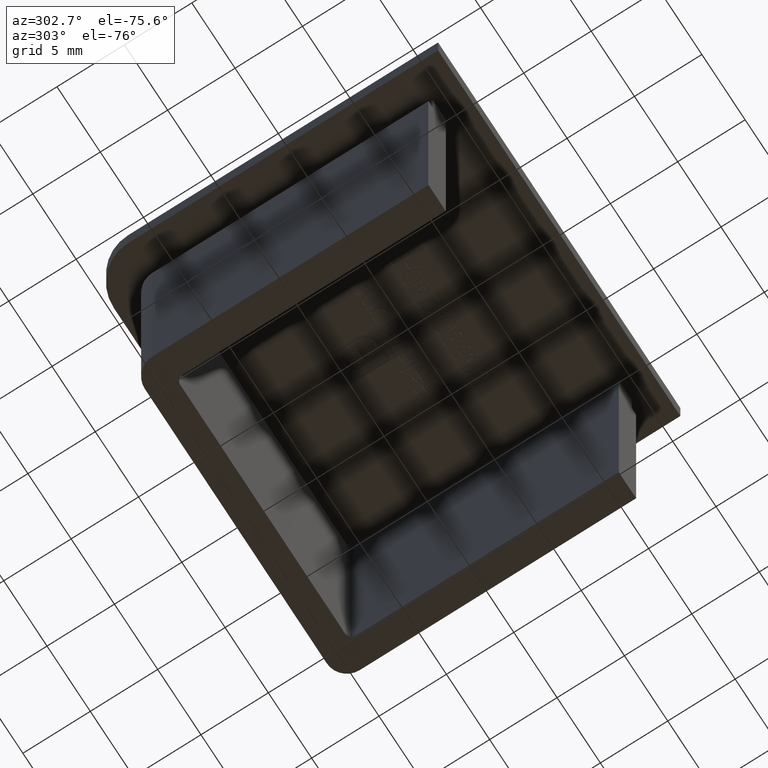
[diagram: clean part render]
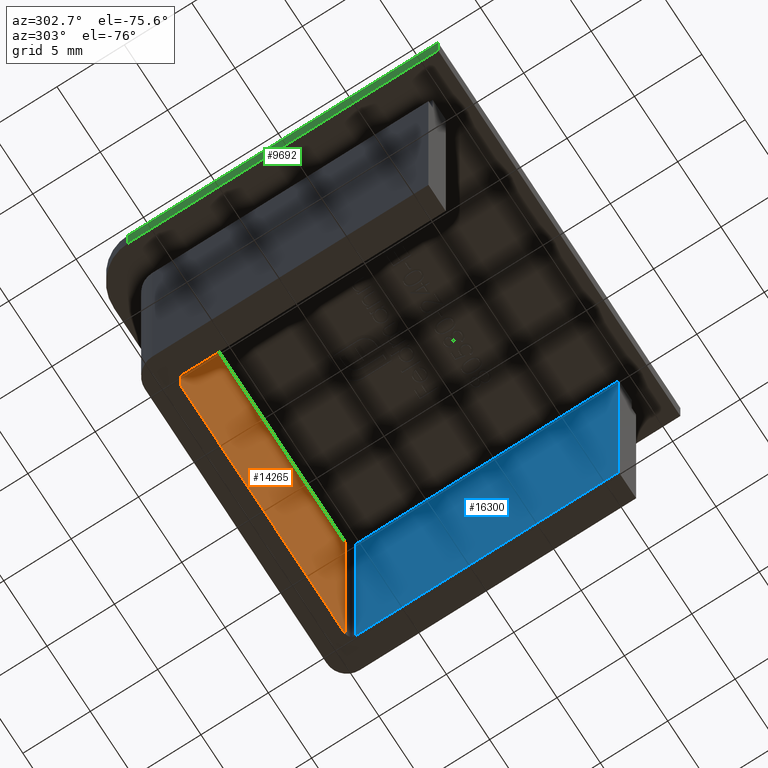
[diagram: same view with three faces highlighted in distinct colors, each labeled with its STEP entity id]
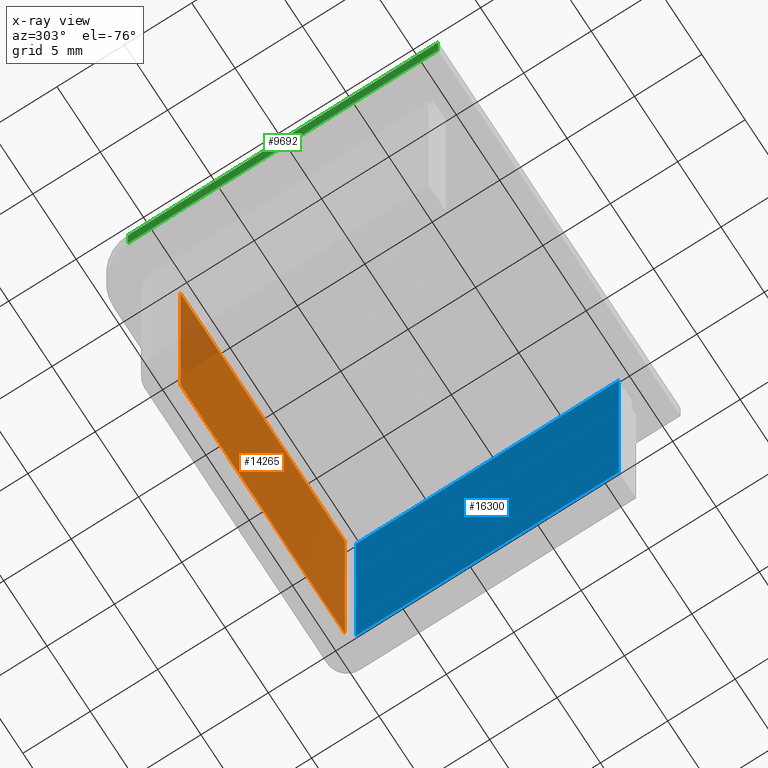
[diagram: x-ray of the same camera — body ghosted, the three highlighted faces saturated]
A machine part, auxiliary view with three faces highlighted in distinct colors.
The next image is the same camera in x-ray (body ghosted, the three faces saturated) — at least one of them is partly hidden behind the body in this view.
Their STEP definitions:

[orange] entity #14265 — the highlighted planar face has unit normal (0, 1, 0).
#243 = DIRECTION ( 'NONE',  ( 9.130123557772669567E-17, 1.000000000000000000, 0.000000000000000000 ) ) ;
#746 = CARTESIAN_POINT ( 'NONE',  ( -9.500000000000001776, 9.000000000000000000, -23.00000000000000000 ) ) ;
#758 = VERTEX_POINT ( 'NONE', #7887 ) ;
#1395 = CARTESIAN_POINT ( 'NONE',  ( 9.499999999999998224, 8.999999999999998224, -23.00000000000000000 ) ) ;
#1555 = ORIENTED_EDGE ( 'NONE', *, *, #15882, .T. ) ;
#1649 = DIRECTION ( 'NONE',  ( -1.000000000000000000, 9.130123557772669567E-17, -0.000000000000000000 ) ) ;
#1931 = LINE ( 'NONE', #9992, #16058 ) ;
#3862 = VERTEX_POINT ( 'NONE', #5811 ) ;
#5766 = CARTESIAN_POINT ( 'NONE',  ( -9.500000000000001776, 9.000000000000000000, -23.00000000000000000 ) ) ;
#5811 = CARTESIAN_POINT ( 'NONE',  ( -9.500000000000001776, 9.000000000000000000, -23.00000000000000000 ) ) ;
#6929 = AXIS2_PLACEMENT_3D ( 'NONE', #5766, #243, #7095 ) ;
#6986 = ORIENTED_EDGE ( 'NONE', *, *, #14466, .F. ) ;
#7095 = DIRECTION ( 'NONE',  ( -1.000000000000000000, 9.130123557772669567E-17, 0.000000000000000000 ) ) ;
#7887 = CARTESIAN_POINT ( 'NONE',  ( 9.499999999999998224, 8.999999999999998224, 0.000000000000000000 ) ) ;
#8149 = VECTOR ( 'NONE', #16259, 1000.000000000000000 ) ;
#8567 = LINE ( 'NONE', #746, #15397 ) ;
#8641 = VERTEX_POINT ( 'NONE', #13622 ) ;
#9992 = CARTESIAN_POINT ( 'NONE',  ( -9.500000000000001776, 9.000000000000000000, 0.000000000000000000 ) ) ;
#11147 = FACE_OUTER_BOUND ( 'NONE', #17321, .T. ) ;
#11872 = DIRECTION ( 'NONE',  ( -1.000000000000000000, 9.130123557772669567E-17, -0.000000000000000000 ) ) ;
#12217 = LINE ( 'NONE', #1395, #8149 ) ;
#12598 = CARTESIAN_POINT ( 'NONE',  ( 9.499999999999998224, 8.999999999999998224, -23.00000000000000000 ) ) ;
#12687 = PLANE ( 'NONE',  #6929 ) ;
#13227 = DIRECTION ( 'NONE',  ( -0.000000000000000000, -0.000000000000000000, 1.000000000000000000 ) ) ;
#13622 = CARTESIAN_POINT ( 'NONE',  ( -9.500000000000001776, 9.000000000000000000, 0.000000000000000000 ) ) ;
#13778 = EDGE_CURVE ( 'NONE', #16254, #758, #12217, .T. ) ;
#13901 = VECTOR ( 'NONE', #13227, 1000.000000000000000 ) ;
#14015 = EDGE_CURVE ( 'NONE', #16254, #3862, #8567, .T. ) ;
#14265 = ADVANCED_FACE ( 'NONE', ( #11147 ), #12687, .F. ) ;
#14341 = LINE ( 'NONE', #15861, #13901 ) ;
#14466 = EDGE_CURVE ( 'NONE', #3862, #8641, #14341, .T. ) ;
#15397 = VECTOR ( 'NONE', #11872, 1000.000000000000000 ) ;
#15861 = CARTESIAN_POINT ( 'NONE',  ( -9.500000000000001776, 9.000000000000000000, -23.00000000000000000 ) ) ;
#15882 = EDGE_CURVE ( 'NONE', #758, #8641, #1931, .T. ) ;
#16058 = VECTOR ( 'NONE', #1649, 1000.000000000000000 ) ;
#16254 = VERTEX_POINT ( 'NONE', #12598 ) ;
#16259 = DIRECTION ( 'NONE',  ( -0.000000000000000000, -0.000000000000000000, 1.000000000000000000 ) ) ;
#16424 = ORIENTED_EDGE ( 'NONE', *, *, #13778, .T. ) ;
#17321 = EDGE_LOOP ( 'NONE', ( #1555, #6986, #17382, #16424 ) ) ;
#17382 = ORIENTED_EDGE ( 'NONE', *, *, #14015, .F. ) ;

[blue] entity #16300 — the highlighted planar face has unit normal (1, -0, 0).
#87 = PLANE ( 'NONE',  #10718 ) ;
#1607 = EDGE_LOOP ( 'NONE', ( #11290, #8492, #17243, #5184 ) ) ;
#2597 = CARTESIAN_POINT ( 'NONE',  ( 10.00000000000000178, 8.499999999999992895, -23.00000000000000000 ) ) ;
#2979 = CARTESIAN_POINT ( 'NONE',  ( 10.00000000000000178, 8.499999999999992895, -23.00000000000000000 ) ) ;
#3235 = VECTOR ( 'NONE', #7519, 1000.000000000000000 ) ;
#4174 = VERTEX_POINT ( 'NONE', #12718 ) ;
#5142 = VERTEX_POINT ( 'NONE', #5741 ) ;
#5184 = ORIENTED_EDGE ( 'NONE', *, *, #7145, .T. ) ;
#5214 = VECTOR ( 'NONE', #15828, 1000.000000000000000 ) ;
#5741 = CARTESIAN_POINT ( 'NONE',  ( 10.00000000000000000, -11.00000000000000000, -23.00000000000000000 ) ) ;
#6894 = DIRECTION ( 'NONE',  ( 8.896017825522090571E-17, 1.000000000000000000, 0.000000000000000000 ) ) ;
#7067 = FACE_OUTER_BOUND ( 'NONE', #1607, .T. ) ;
#7145 = EDGE_CURVE ( 'NONE', #5142, #15618, #9529, .T. ) ;
#7519 = DIRECTION ( 'NONE',  ( -0.000000000000000000, -0.000000000000000000, 1.000000000000000000 ) ) ;
#8492 = ORIENTED_EDGE ( 'NONE', *, *, #13333, .F. ) ;
#8829 = EDGE_CURVE ( 'NONE', #5142, #9505, #12276, .T. ) ;
#8830 = CARTESIAN_POINT ( 'NONE',  ( 10.00000000000000178, 8.499999999999992895, -23.00000000000000000 ) ) ;
#8848 = LINE ( 'NONE', #10335, #5214 ) ;
#9505 = VERTEX_POINT ( 'NONE', #2597 ) ;
#9529 = LINE ( 'NONE', #14223, #15735 ) ;
#9650 = LINE ( 'NONE', #8830, #3235 ) ;
#9674 = DIRECTION ( 'NONE',  ( 1.000000000000000000, -8.896017825522091804E-17, 0.000000000000000000 ) ) ;
#10335 = CARTESIAN_POINT ( 'NONE',  ( 10.00000000000000178, 8.499999999999992895, 0.000000000000000000 ) ) ;
#10718 = AXIS2_PLACEMENT_3D ( 'NONE', #16607, #9674, #15275 ) ;
#11142 = EDGE_CURVE ( 'NONE', #15618, #4174, #8848, .T. ) ;
#11290 = ORIENTED_EDGE ( 'NONE', *, *, #11142, .T. ) ;
#11637 = VECTOR ( 'NONE', #6894, 1000.000000000000000 ) ;
#12276 = LINE ( 'NONE', #2979, #11637 ) ;
#12718 = CARTESIAN_POINT ( 'NONE',  ( 10.00000000000000178, 8.499999999999996447, 0.000000000000000000 ) ) ;
#13333 = EDGE_CURVE ( 'NONE', #9505, #4174, #9650, .T. ) ;
#14223 = CARTESIAN_POINT ( 'NONE',  ( 10.00000000000000000, -11.00000000000000000, -23.00000000000000000 ) ) ;
#15275 = DIRECTION ( 'NONE',  ( 8.896017825522091804E-17, 1.000000000000000000, 0.000000000000000000 ) ) ;
#15618 = VERTEX_POINT ( 'NONE', #16291 ) ;
#15735 = VECTOR ( 'NONE', #16930, 1000.000000000000000 ) ;
#15828 = DIRECTION ( 'NONE',  ( 8.896017825522090571E-17, 1.000000000000000000, 0.000000000000000000 ) ) ;
#16291 = CARTESIAN_POINT ( 'NONE',  ( 10.00000000000000000, -11.00000000000000000, 0.000000000000000000 ) ) ;
#16300 = ADVANCED_FACE ( 'NONE', ( #7067 ), #87, .F. ) ;
#16607 = CARTESIAN_POINT ( 'NONE',  ( 10.00000000000000178, 8.499999999999992895, -23.00000000000000000 ) ) ;
#16930 = DIRECTION ( 'NONE',  ( -0.000000000000000000, -0.000000000000000000, 1.000000000000000000 ) ) ;
#17243 = ORIENTED_EDGE ( 'NONE', *, *, #8829, .F. ) ;

[green] entity #9692 — the highlighted planar face has unit normal (1, 0, -0).
#228 = ORIENTED_EDGE ( 'NONE', *, *, #2778, .T. ) ;
#244 = CARTESIAN_POINT ( 'NONE',  ( -13.99999999999999645, -13.00000000000000000, 0.000000000000000000 ) ) ;
#612 = DIRECTION ( 'NONE',  ( 0.000000000000000000, 0.000000000000000000, -1.000000000000000000 ) ) ;
#886 = CARTESIAN_POINT ( 'NONE',  ( -14.00000000000000178, 9.999999999999998224, 0.000000000000000000 ) ) ;
#893 = DIRECTION ( 'NONE',  ( -2.001604010742470255E-16, 1.000000000000000000, 0.000000000000000000 ) ) ;
#1177 = VERTEX_POINT ( 'NONE', #13003 ) ;
#1467 = CARTESIAN_POINT ( 'NONE',  ( -14.00000000000000178, 13.00000000000000000, 2.000000000000000000 ) ) ;
#2335 = CARTESIAN_POINT ( 'NONE',  ( -14.00000000000000178, 13.00000000000000000, 2.000000000000000000 ) ) ;
#2778 = EDGE_CURVE ( 'NONE', #15539, #12062, #4780, .T. ) ;
#3300 = CARTESIAN_POINT ( 'NONE',  ( -14.00000000000000178, 13.00000000000000000, 0.000000000000000000 ) ) ;
#3421 = ORIENTED_EDGE ( 'NONE', *, *, #5091, .F. ) ;
#3503 = EDGE_LOOP ( 'NONE', ( #3421, #228, #10492, #8945 ) ) ;
#4780 = LINE ( 'NONE', #8822, #9701 ) ;
#5091 = EDGE_CURVE ( 'NONE', #15539, #1177, #7655, .T. ) ;
#5457 = DIRECTION ( 'NONE',  ( 2.001604010742470255E-16, -1.000000000000000000, 0.000000000000000000 ) ) ;
#5815 = VECTOR ( 'NONE', #14119, 1000.000000000000000 ) ;
#6120 = VECTOR ( 'NONE', #16800, 1000.000000000000000 ) ;
#7040 = EDGE_CURVE ( 'NONE', #1177, #8050, #9745, .T. ) ;
#7655 = LINE ( 'NONE', #1467, #12767 ) ;
#8050 = VERTEX_POINT ( 'NONE', #244 ) ;
#8822 = CARTESIAN_POINT ( 'NONE',  ( -14.00000000000000178, 9.999999999999998224, 2.000000000000000000 ) ) ;
#8945 = ORIENTED_EDGE ( 'NONE', *, *, #7040, .F. ) ;
#9292 = AXIS2_PLACEMENT_3D ( 'NONE', #2335, #15909, #893 ) ;
#9692 = ADVANCED_FACE ( 'NONE', ( #13352 ), #13170, .F. ) ;
#9701 = VECTOR ( 'NONE', #612, 1000.000000000000000 ) ;
#9745 = LINE ( 'NONE', #12372, #6120 ) ;
#9879 = LINE ( 'NONE', #3300, #5815 ) ;
#10492 = ORIENTED_EDGE ( 'NONE', *, *, #13627, .T. ) ;
#10609 = CARTESIAN_POINT ( 'NONE',  ( -14.00000000000000178, 9.999999999999998224, 2.000000000000000000 ) ) ;
#12062 = VERTEX_POINT ( 'NONE', #886 ) ;
#12372 = CARTESIAN_POINT ( 'NONE',  ( -13.99999999999999645, -13.00000000000000000, 2.000000000000000000 ) ) ;
#12767 = VECTOR ( 'NONE', #5457, 1000.000000000000000 ) ;
#13003 = CARTESIAN_POINT ( 'NONE',  ( -13.99999999999999645, -13.00000000000000000, 2.000000000000000000 ) ) ;
#13170 = PLANE ( 'NONE',  #9292 ) ;
#13352 = FACE_OUTER_BOUND ( 'NONE', #3503, .T. ) ;
#13627 = EDGE_CURVE ( 'NONE', #12062, #8050, #9879, .T. ) ;
#14119 = DIRECTION ( 'NONE',  ( 2.001604010742470255E-16, -1.000000000000000000, 0.000000000000000000 ) ) ;
#15539 = VERTEX_POINT ( 'NONE', #10609 ) ;
#15909 = DIRECTION ( 'NONE',  ( 1.000000000000000000, 2.001604010742470255E-16, -0.000000000000000000 ) ) ;
#16800 = DIRECTION ( 'NONE',  ( -0.000000000000000000, -0.000000000000000000, -1.000000000000000000 ) ) ;